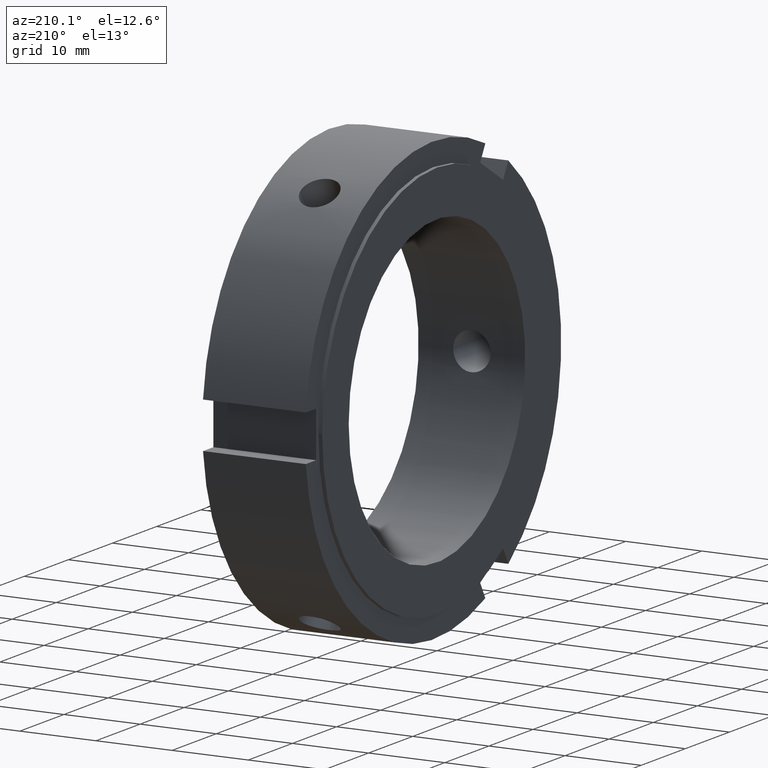
[diagram: clean part render]
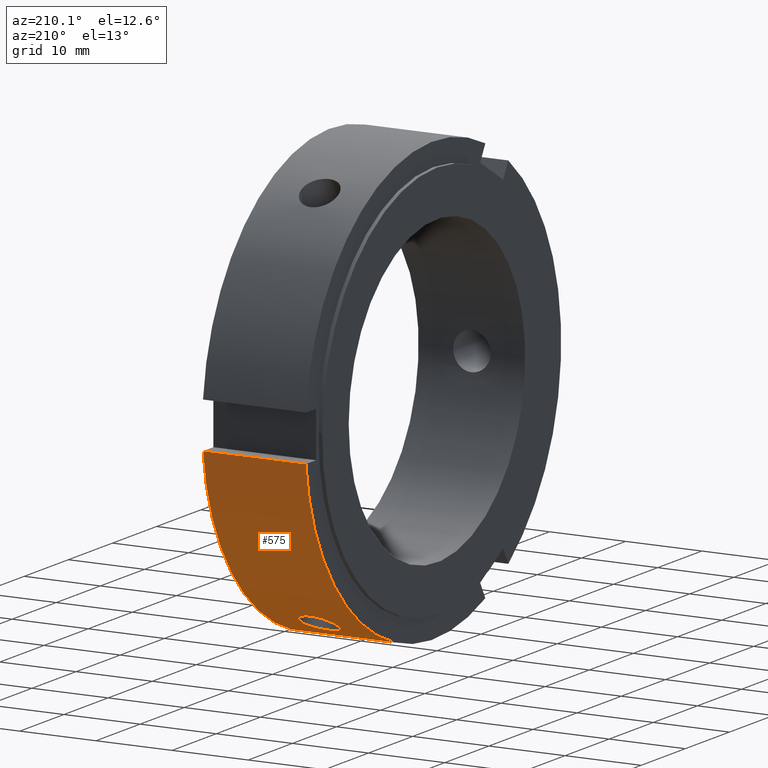
[diagram: same view with one face highlighted and labeled with its STEP entity id]
A machine part, auxiliary view. The second image highlights one B-rep face of the part: STEP entity #575.
In plain terms, the highlighted cylindrical surface (partial cylindrical patch) has radius 29 mm, axis along (1, 0, 0).
Its self-contained STEP definition (entity closure, byte-faithful):
#113=CARTESIAN_POINT('',(0.499999999999994,-11.824128890502656,-26.479991993593586));
#114=VERTEX_POINT('',#113);
#123=CARTESIAN_POINT('',(13.999999999999995,-11.824128890502656,-26.479991993593586));
#124=VERTEX_POINT('',#123);
#125=CARTESIAN_POINT('',(13.999999999999995,-11.824128890502656,-26.479991993593586));
#126=DIRECTION('',(-1.0,0.0,0.0));
#127=VECTOR('',#126,13.500000000000000);
#128=LINE('',#125,#127);
#129=EDGE_CURVE('',#124,#114,#128,.T.);
#365=CARTESIAN_POINT('',(6.999999999999994,12.318677223013383,-26.253574832300679));
#366=VERTEX_POINT('',#365);
#367=CARTESIAN_POINT('',(6.999999999999995,12.318677223013378,-26.253574832300679));
#368=CARTESIAN_POINT('',(7.308854109261288,12.318677223013378,-26.253574832300679));
#369=CARTESIAN_POINT('',(7.638193209310603,12.374889481479299,-26.227427453971053));
#370=CARTESIAN_POINT('',(8.243872746317136,12.602071434494654,-26.119028236953341));
#371=CARTESIAN_POINT('',(8.520225825376887,12.772891056928824,-26.036532705577606));
#372=CARTESIAN_POINT('',(8.956617835114848,13.163921075594693,-25.841032545715574));
#373=CARTESIAN_POINT('',(9.145800030290953,13.410222336552518,-25.714932347788533));
#374=CARTESIAN_POINT('',(9.396745207676929,13.944588846379975,-25.429122097925017));
#375=CARTESIAN_POINT('',(9.458499999999994,14.232524964329256,-25.269163493594739));
#376=CARTESIAN_POINT('',(9.458499999999994,14.767475035670738,-24.960309925902724));
#377=CARTESIAN_POINT('',(9.396745207676926,15.049971309549306,-24.790929235256716));
#378=CARTESIAN_POINT('',(9.145800030290948,15.564673501506817,-24.471059387746266));
#379=CARTESIAN_POINT('',(8.956617835114848,15.797030106812793,-24.320806337736162));
#380=CARTESIAN_POINT('',(8.520225825376883,16.161853221030164,-24.079914487860229));
#381=CARTESIAN_POINT('',(8.243872746317130,16.318706258117327,-23.973228121055254));
#382=CARTESIAN_POINT('',(7.638193209310598,16.526173710312694,-23.830682386971450));
#383=CARTESIAN_POINT('',(7.308854109261286,16.576924133421471,-23.795074832300674));
#384=CARTESIAN_POINT('',(6.691145890738702,16.576924133421471,-23.795074832300674));
#385=CARTESIAN_POINT('',(6.361806790689391,16.526173710312694,-23.830682386971450));
#386=CARTESIAN_POINT('',(5.756127253682858,16.318706258117327,-23.973228121055254));
#387=CARTESIAN_POINT('',(5.479774174623104,16.161853221030164,-24.079914487860229));
#388=CARTESIAN_POINT('',(5.043382164885140,15.797030106812793,-24.320806337736162));
#389=CARTESIAN_POINT('',(4.854199969709041,15.564673501506817,-24.471059387746266));
#390=CARTESIAN_POINT('',(4.603254792323063,15.049971309549306,-24.790929235256716));
#391=CARTESIAN_POINT('',(4.541499999999994,14.767475035670738,-24.960309925902724));
#392=CARTESIAN_POINT('',(4.541499999999994,14.232524964329258,-25.269163493594739));
#393=CARTESIAN_POINT('',(4.603254792323060,13.944588846379972,-25.429122097925017));
#394=CARTESIAN_POINT('',(4.854199969709036,13.410222336552513,-25.714932347788533));
#395=CARTESIAN_POINT('',(5.043382164885140,13.163921075594695,-25.841032545715574));
#396=CARTESIAN_POINT('',(5.479774174623103,12.772891056928824,-26.036532705577606));
#397=CARTESIAN_POINT('',(5.756127253682857,12.602071434494652,-26.119028236953341));
#398=CARTESIAN_POINT('',(6.361806790689389,12.374889481479297,-26.227427453971053));
#399=CARTESIAN_POINT('',(6.691145890738702,12.318677223013379,-26.253574832300679));
#400=CARTESIAN_POINT('',(6.999999999999994,12.318677223013379,-26.253574832300679));
#401=B_SPLINE_CURVE_WITH_KNOTS('',3,(#367,#368,#369,#370,#371,#372,#373,#374,#375,#376,#377,#378,#379,#380,#381,#382,#383,#384,#385,#386,#387,#388,#389,#390,#391,#392,#393,#394,#395,#396,#397,#398,#399,#400),.UNSPECIFIED.,.T.,.U.,(4,2,2,2,2,2,2,2,2,2,2,2,2,2,2,2,4),(0.0,0.092656232778388,0.185312465556775,0.277968535864379,0.370624606171983,0.463280676479587,0.555936746787191,0.648592979565578,0.741249212343966,0.833905445122353,0.926561677900741,1.019217748208345,1.111873818515949,1.204529888823553,1.297185959131156,1.389842191909544,1.482498424687932),.UNSPECIFIED.);
#402=EDGE_CURVE('',#366,#366,#401,.T.);
#456=CARTESIAN_POINT('',(13.999999999999995,28.844410203711917,-2.999999999999999));
#457=VERTEX_POINT('',#456);
#458=CARTESIAN_POINT('',(13.999999999999995,0.0,0.0));
#459=DIRECTION('',(1.0,0.0,0.0));
#460=DIRECTION('',(0.0,1.0,0.0));
#461=AXIS2_PLACEMENT_3D('',#458,#459,#460);
#462=CIRCLE('',#461,29.000000000000004);
#463=EDGE_CURVE('',#124,#457,#462,.T.);
#548=CARTESIAN_POINT('',(7.249999999999995,0.0,0.0));
#549=DIRECTION('',(1.0,0.0,0.0));
#550=DIRECTION('',(0.0,1.0,0.0));
#551=AXIS2_PLACEMENT_3D('',#548,#549,#550);
#552=CYLINDRICAL_SURFACE('',#551,29.000000000000004);
#553=ORIENTED_EDGE('',*,*,#129,.T.);
#554=CARTESIAN_POINT('',(0.499999999999994,28.844410203711917,-2.999999999999999));
#555=VERTEX_POINT('',#554);
#556=CARTESIAN_POINT('',(0.499999999999994,0.0,0.0));
#557=DIRECTION('',(1.0,0.0,0.0));
#558=DIRECTION('',(0.0,1.0,0.0));
#559=AXIS2_PLACEMENT_3D('',#556,#557,#558);
#560=CIRCLE('',#559,29.0);
#561=EDGE_CURVE('',#114,#555,#560,.T.);
#562=ORIENTED_EDGE('',*,*,#561,.T.);
#563=CARTESIAN_POINT('',(0.499999999999994,28.844410203711917,-2.999999999999999));
#564=DIRECTION('',(1.0,0.0,0.0));
#565=VECTOR('',#564,13.500000000000000);
#566=LINE('',#563,#565);
#567=EDGE_CURVE('',#555,#457,#566,.T.);
#568=ORIENTED_EDGE('',*,*,#567,.T.);
#569=ORIENTED_EDGE('',*,*,#463,.F.);
#570=EDGE_LOOP('',(#553,#562,#568,#569));
#571=FACE_OUTER_BOUND('',#570,.T.);
#572=ORIENTED_EDGE('',*,*,#402,.T.);
#573=EDGE_LOOP('',(#572));
#574=FACE_BOUND('',#573,.T.);
#575=ADVANCED_FACE('',(#571,#574),#552,.T.);